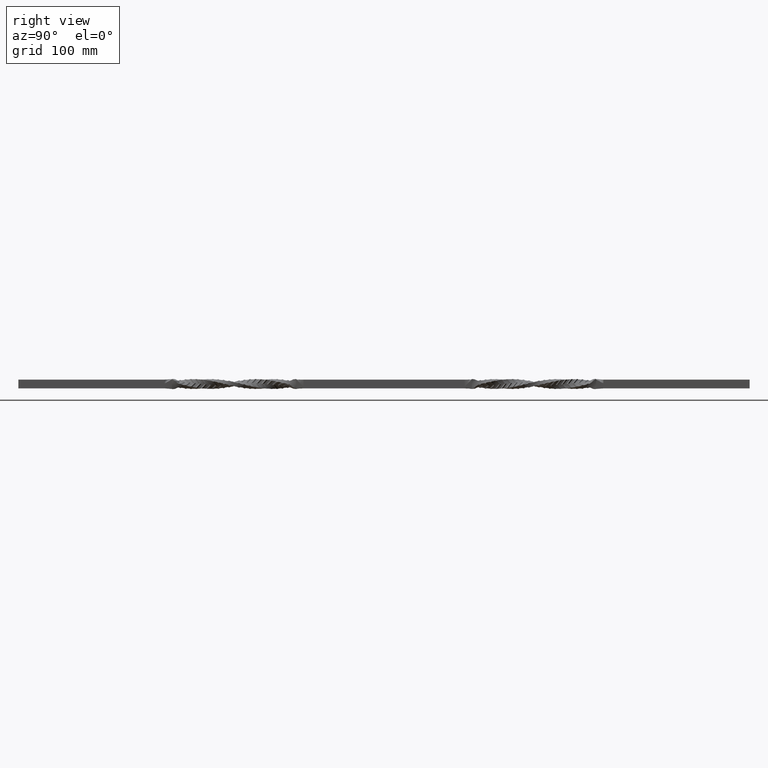
[diagram: clean part render]
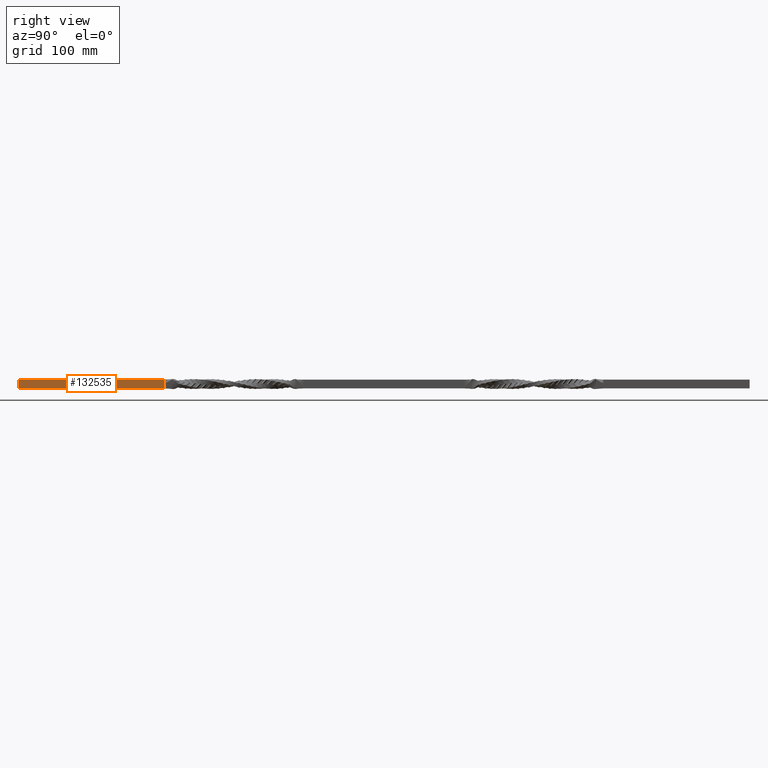
[diagram: same view with one face highlighted and labeled with its STEP entity id]
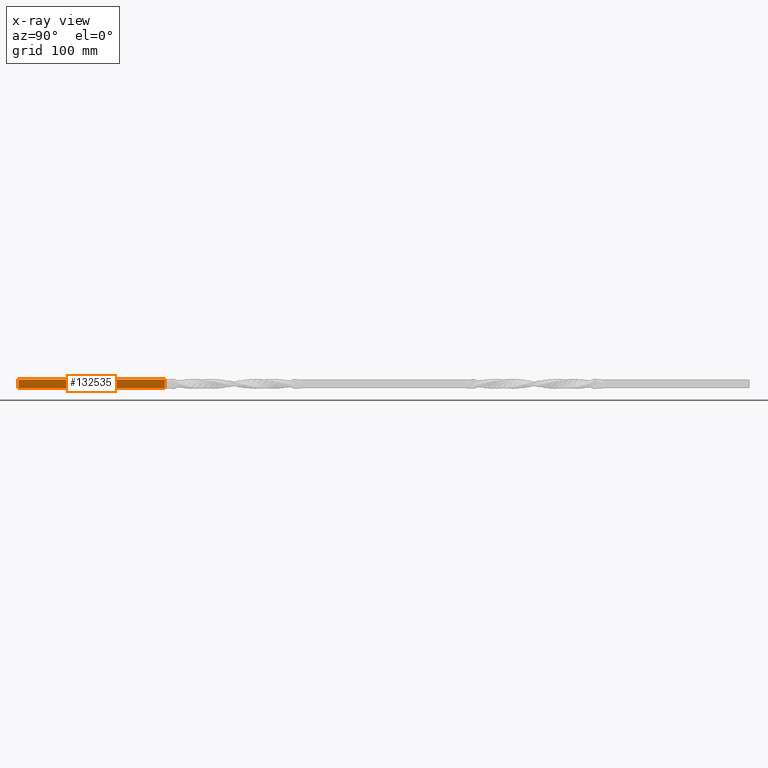
[diagram: x-ray of the same camera — body ghosted, the highlighted face saturated]
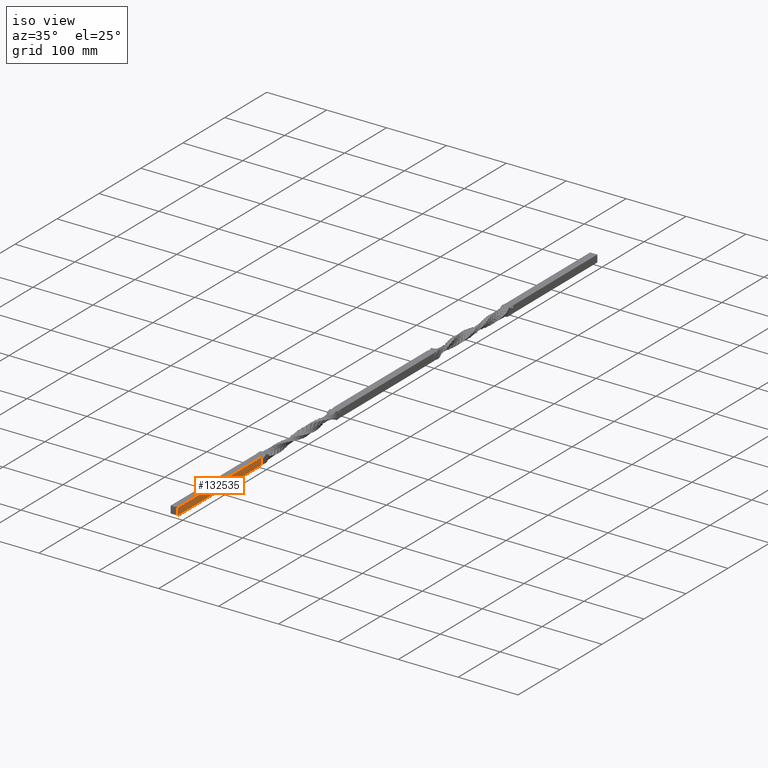
[diagram: same view with one face highlighted and labeled with its STEP entity id]
A machine part, right view. The second image highlights one B-rep face of the part: STEP entity #132535.
The next image is the same camera in x-ray: the body ghosted, the highlighted face saturated — about 0% of this face is hidden behind the body in this view.
A second angle (iso view) of the same face is appended — the face is thin or edge-on in the first view.
In plain terms, the highlighted planar face has unit normal (-1, 0, -0).
Its self-contained STEP definition (entity closure, byte-faithful):
#1422 = LINE ( 'NONE', #72004, #19027 ) ;
#2362 = VECTOR ( 'NONE', #43586, 1000.000000000000000 ) ;
#2988 = VERTEX_POINT ( 'NONE', #147298 ) ;
#4294 = LINE ( 'NONE', #113796, #146975 ) ;
#8277 = ORIENTED_EDGE ( 'NONE', *, *, #116238, .T. ) ;
#8404 = CARTESIAN_POINT ( 'NONE',  ( 5.999999999999997335, -20.00000000000000000, 6.000000000000000000 ) ) ;
#9987 = VERTEX_POINT ( 'NONE', #152644 ) ;
#11000 = EDGE_CURVE ( 'NONE', #2988, #64202, #121008, .T. ) ;
#15083 = CARTESIAN_POINT ( 'NONE',  ( 5.999999999999997335, -220.0000000000000000, -6.000000000000000000 ) ) ;
#15945 = ORIENTED_EDGE ( 'NONE', *, *, #11000, .T. ) ;
#18862 = CARTESIAN_POINT ( 'NONE',  ( 5.999999999999997335, -20.00000000000000000, 0.5606570412918284729 ) ) ;
#19027 = VECTOR ( 'NONE', #47908, 1000.000000000000000 ) ;
#23676 = VECTOR ( 'NONE', #56967, 1000.000000000000000 ) ;
#25375 = DIRECTION ( 'NONE',  ( -0.000000000000000000, -0.000000000000000000, 1.000000000000000000 ) ) ;
#25647 = DIRECTION ( 'NONE',  ( -0.000000000000000000, -0.000000000000000000, 1.000000000000000000 ) ) ;
#26889 = DIRECTION ( 'NONE',  ( -0.000000000000000000, 0.000000000000000000, 1.000000000000000000 ) ) ;
#27436 = PLANE ( 'NONE',  #31441 ) ;
#31441 = AXIS2_PLACEMENT_3D ( 'NONE', #115049, #140748, #26889 ) ;
#32894 = EDGE_LOOP ( 'NONE', ( #8277, #148889, #65447, #78687, #15945, #152252, #132742, #40348 ) ) ;
#40348 = ORIENTED_EDGE ( 'NONE', *, *, #116700, .T. ) ;
#43144 = CARTESIAN_POINT ( 'NONE',  ( 5.999999999999997335, -20.00000000000000000, 1.389684316612942894 ) ) ;
#43190 = VERTEX_POINT ( 'NONE', #124703 ) ;
#43586 = DIRECTION ( 'NONE',  ( -0.000000000000000000, -0.000000000000000000, 1.000000000000000000 ) ) ;
#44659 = VECTOR ( 'NONE', #108388, 1000.000000000000000 ) ;
#47908 = DIRECTION ( 'NONE',  ( -0.000000000000000000, -0.000000000000000000, 1.000000000000000000 ) ) ;
#52066 = CARTESIAN_POINT ( 'NONE',  ( 5.999999999999997335, -20.00000000000000000, 0.6392417406548590586 ) ) ;
#55628 = CARTESIAN_POINT ( 'NONE',  ( 5.999999999999997335, -20.00000000000000000, 6.000000000000000000 ) ) ;
#56967 = DIRECTION ( 'NONE',  ( -0.000000000000000000, 1.000000000000000000, -0.000000000000000000 ) ) ;
#57003 = EDGE_CURVE ( 'NONE', #43190, #64202, #68799, .T. ) ;
#64202 = VERTEX_POINT ( 'NONE', #81024 ) ;
#65447 = ORIENTED_EDGE ( 'NONE', *, *, #146446, .T. ) ;
#67909 = EDGE_CURVE ( 'NONE', #147549, #43190, #117523, .T. ) ;
#68799 = LINE ( 'NONE', #71660, #23676 ) ;
#68960 = LINE ( 'NONE', #55628, #2362 ) ;
#70366 = FACE_OUTER_BOUND ( 'NONE', #32894, .T. ) ;
#71660 = CARTESIAN_POINT ( 'NONE',  ( 5.999999999999997335, -220.0000000000000000, 6.000000000000000000 ) ) ;
#72004 = CARTESIAN_POINT ( 'NONE',  ( 5.999999999999997335, -20.00000000000000000, 6.000000000000000000 ) ) ;
#76802 = VECTOR ( 'NONE', #102155, 1000.000000000000000 ) ;
#78687 = ORIENTED_EDGE ( 'NONE', *, *, #87456, .T. ) ;
#81024 = CARTESIAN_POINT ( 'NONE',  ( 5.999999999999997335, -20.00000000000000000, 6.000000000000000000 ) ) ;
#82930 = VERTEX_POINT ( 'NONE', #52066 ) ;
#87456 = EDGE_CURVE ( 'NONE', #131440, #2988, #99490, .T. ) ;
#96030 = DIRECTION ( 'NONE',  ( -0.000000000000000000, -0.000000000000000000, 1.000000000000000000 ) ) ;
#99490 = LINE ( 'NONE', #117769, #44659 ) ;
#102155 = DIRECTION ( 'NONE',  ( -0.000000000000000000, 1.000000000000000000, -0.000000000000000000 ) ) ;
#104000 = CARTESIAN_POINT ( 'NONE',  ( 5.999999999999997335, -220.0000000000000000, -6.000000000000000000 ) ) ;
#108388 = DIRECTION ( 'NONE',  ( -0.000000000000000000, -0.000000000000000000, 1.000000000000000000 ) ) ;
#110103 = LINE ( 'NONE', #15083, #76802 ) ;
#113560 = VECTOR ( 'NONE', #25375, 1000.000000000000000 ) ;
#113796 = CARTESIAN_POINT ( 'NONE',  ( 5.999999999999997335, -20.00000000000000000, 6.000000000000000000 ) ) ;
#115049 = CARTESIAN_POINT ( 'NONE',  ( 5.999999999999997335, -220.0000000000000000, 6.000000000000000000 ) ) ;
#116238 = EDGE_CURVE ( 'NONE', #9987, #117035, #68960, .T. ) ;
#116700 = EDGE_CURVE ( 'NONE', #147549, #9987, #110103, .T. ) ;
#117035 = VERTEX_POINT ( 'NONE', #18862 ) ;
#117523 = LINE ( 'NONE', #162196, #113560 ) ;
#117769 = CARTESIAN_POINT ( 'NONE',  ( 5.999999999999997335, -20.00000000000000000, 6.000000000000000000 ) ) ;
#120787 = EDGE_CURVE ( 'NONE', #117035, #82930, #4294, .T. ) ;
#121008 = LINE ( 'NONE', #8404, #146412 ) ;
#124703 = CARTESIAN_POINT ( 'NONE',  ( 5.999999999999997335, -220.0000000000000000, 6.000000000000000000 ) ) ;
#131440 = VERTEX_POINT ( 'NONE', #43144 ) ;
#132535 = ADVANCED_FACE ( 'NONE', ( #70366 ), #27436, .F. ) ;
#132742 = ORIENTED_EDGE ( 'NONE', *, *, #67909, .F. ) ;
#140748 = DIRECTION ( 'NONE',  ( -1.000000000000000000, 0.000000000000000000, -0.000000000000000000 ) ) ;
#146412 = VECTOR ( 'NONE', #96030, 1000.000000000000000 ) ;
#146446 = EDGE_CURVE ( 'NONE', #82930, #131440, #1422, .T. ) ;
#146975 = VECTOR ( 'NONE', #25647, 1000.000000000000000 ) ;
#147298 = CARTESIAN_POINT ( 'NONE',  ( 5.999999999999997335, -20.00000000000000000, 5.904552654541864065 ) ) ;
#147549 = VERTEX_POINT ( 'NONE', #104000 ) ;
#148889 = ORIENTED_EDGE ( 'NONE', *, *, #120787, .T. ) ;
#152252 = ORIENTED_EDGE ( 'NONE', *, *, #57003, .F. ) ;
#152644 = CARTESIAN_POINT ( 'NONE',  ( 5.999999999999997335, -20.00000000000000000, -6.000000000000000000 ) ) ;
#162196 = CARTESIAN_POINT ( 'NONE',  ( 5.999999999999997335, -220.0000000000000000, 6.000000000000000000 ) ) ;